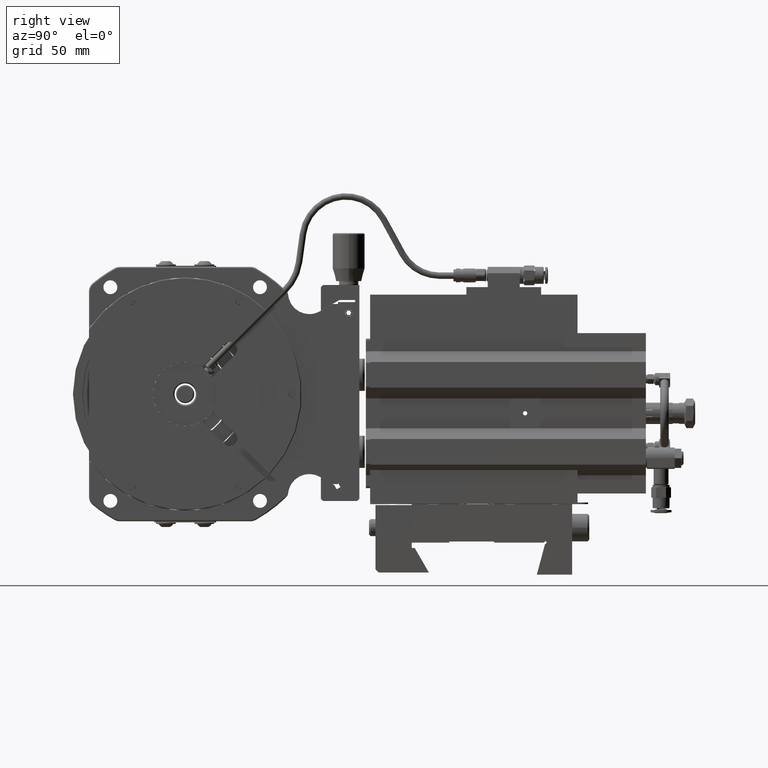
[diagram: clean part render]
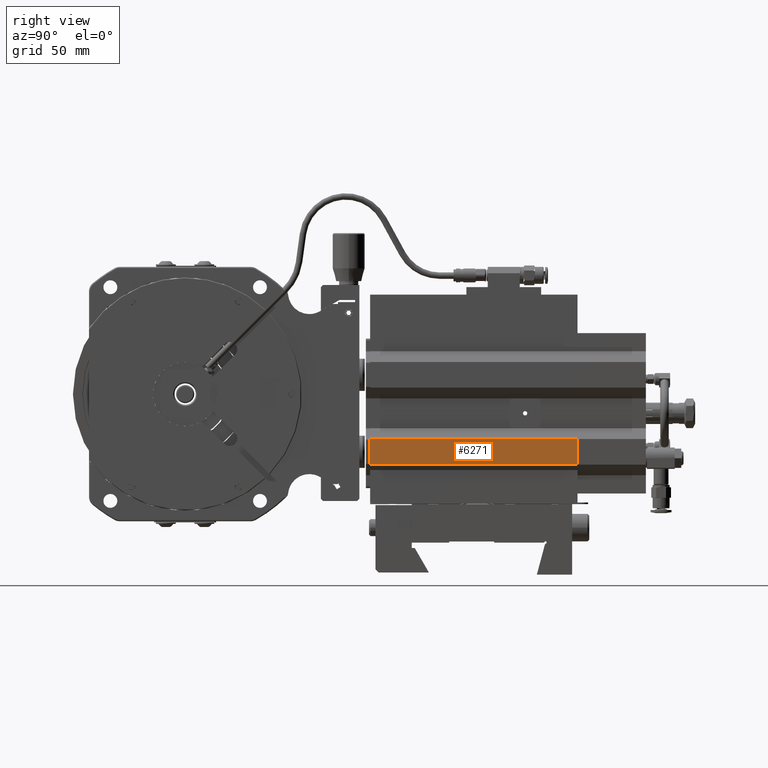
[diagram: same view with one face highlighted and labeled with its STEP entity id]
A machine part, right view. The second image highlights one B-rep face of the part: STEP entity #6271.
In plain terms, the highlighted planar face has unit normal (-1, 0, -0).
Its self-contained STEP definition (entity closure, byte-faithful):
#214 = CARTESIAN_POINT ( 'NONE',  ( 0.4330708661417326799, 3.308669289292881288, -1.297269632792939387 ) ) ;
#485 = CARTESIAN_POINT ( 'NONE',  ( 0.4330708661417326244, 3.308669289292881288, -0.8248286879110496850 ) ) ;
#1602 = CARTESIAN_POINT ( 'NONE',  ( 0.4330708661417326244, 7.127566927088157200, -1.297269632792939387 ) ) ;
#3754 = VERTEX_POINT ( 'NONE', #214 ) ;
#4465 = VERTEX_POINT ( 'NONE', #485 ) ;
#6271 = ADVANCED_FACE ( 'NONE', ( #30262 ), #21688, .F. ) ;
#7207 = ORIENTED_EDGE ( 'NONE', *, *, #45931, .T. ) ;
#9499 = VECTOR ( 'NONE', #11067, 39.37007874015748143 ) ;
#11067 = DIRECTION ( 'NONE',  ( -2.738967610578714190E-17, 1.000000000000000000, -2.775557561562891351E-17 ) ) ;
#15841 = VECTOR ( 'NONE', #50718, 39.37007874015748143 ) ;
#19203 = DIRECTION ( 'NONE',  ( -2.738967610578714190E-17, 1.000000000000000000, -2.775557561562891351E-17 ) ) ;
#20062 = ORIENTED_EDGE ( 'NONE', *, *, #50504, .F. ) ;
#21317 = CARTESIAN_POINT ( 'NONE',  ( 0.4330708661417325689, 3.308669289292881288, -1.994120026493726883 ) ) ;
#21688 = PLANE ( 'NONE',  #22362 ) ;
#22362 = AXIS2_PLACEMENT_3D ( 'NONE', #36217, #44444, #22807 ) ;
#22807 = DIRECTION ( 'NONE',  ( -1.980585485652775426E-16, -5.551115123125782702E-17, 1.000000000000000000 ) ) ;
#23078 = EDGE_CURVE ( 'NONE', #31546, #27845, #51002, .T. ) ;
#24504 = CARTESIAN_POINT ( 'NONE',  ( 0.4330708661417324579, 7.127566927088157200, -1.994120026493726883 ) ) ;
#26464 = EDGE_CURVE ( 'NONE', #4465, #3754, #38188, .T. ) ;
#27845 = VERTEX_POINT ( 'NONE', #1602 ) ;
#29035 = LINE ( 'NONE', #45501, #9499 ) ;
#30200 = DIRECTION ( 'NONE',  ( 1.980585485652775426E-16, 5.551115123125782702E-17, -1.000000000000000000 ) ) ;
#30262 = FACE_OUTER_BOUND ( 'NONE', #45624, .T. ) ;
#31546 = VERTEX_POINT ( 'NONE', #55994 ) ;
#33745 = ORIENTED_EDGE ( 'NONE', *, *, #26464, .T. ) ;
#33753 = VECTOR ( 'NONE', #19203, 39.37007874015748143 ) ;
#36217 = CARTESIAN_POINT ( 'NONE',  ( 0.4330708661417324579, 7.127566927088157200, -1.994120026493726883 ) ) ;
#37480 = CARTESIAN_POINT ( 'NONE',  ( 0.4330708661417326244, 3.308669289292881288, -0.8248286879110496850 ) ) ;
#38188 = LINE ( 'NONE', #21317, #53268 ) ;
#44444 = DIRECTION ( 'NONE',  ( -1.000000000000000000, 5.477935221156372661E-17, -1.980585485652775426E-16 ) ) ;
#45398 = LINE ( 'NONE', #37480, #33753 ) ;
#45501 = CARTESIAN_POINT ( 'NONE',  ( 0.4330708661417326799, 3.308669289292881288, -1.297269632792939387 ) ) ;
#45624 = EDGE_LOOP ( 'NONE', ( #7207, #50792, #20062, #33745 ) ) ;
#45931 = EDGE_CURVE ( 'NONE', #3754, #27845, #29035, .T. ) ;
#50504 = EDGE_CURVE ( 'NONE', #4465, #31546, #45398, .T. ) ;
#50718 = DIRECTION ( 'NONE',  ( 1.980585485652775426E-16, 5.551115123125782702E-17, -1.000000000000000000 ) ) ;
#50792 = ORIENTED_EDGE ( 'NONE', *, *, #23078, .F. ) ;
#51002 = LINE ( 'NONE', #24504, #15841 ) ;
#53268 = VECTOR ( 'NONE', #30200, 39.37007874015748143 ) ;
#55994 = CARTESIAN_POINT ( 'NONE',  ( 0.4330708661417325689, 7.127566927088157200, -0.8248286879110497960 ) ) ;